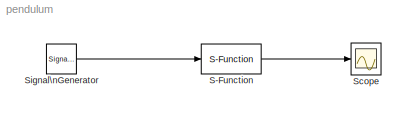
MODEL pendulum
KIND model
BLOCK [S-Function] S-Function
  EnableBusSupport = off
  FunctionName = simpendzzy
  Parameters = dampzzy,gravzzy,angzzy
  Ports = [1, 1]
  SID = 3
BLOCK [Scope] Scope
  DataFormat = StructureWithTime
  Floating = off
  NumInputPorts = 1
  Ports = [1]
  SID = 5
  SampleTime = 0
BLOCK [SignalGenerator] Signal\nGenerator
  Frequency = 0.1
  Ports = [0, 1]
  SID = 4
  Units = rad/sec
  WaveForm = square
LINE S-Function:1 -> Scope:1
LINE Signal\nGenerator:1 -> S-Function:1
